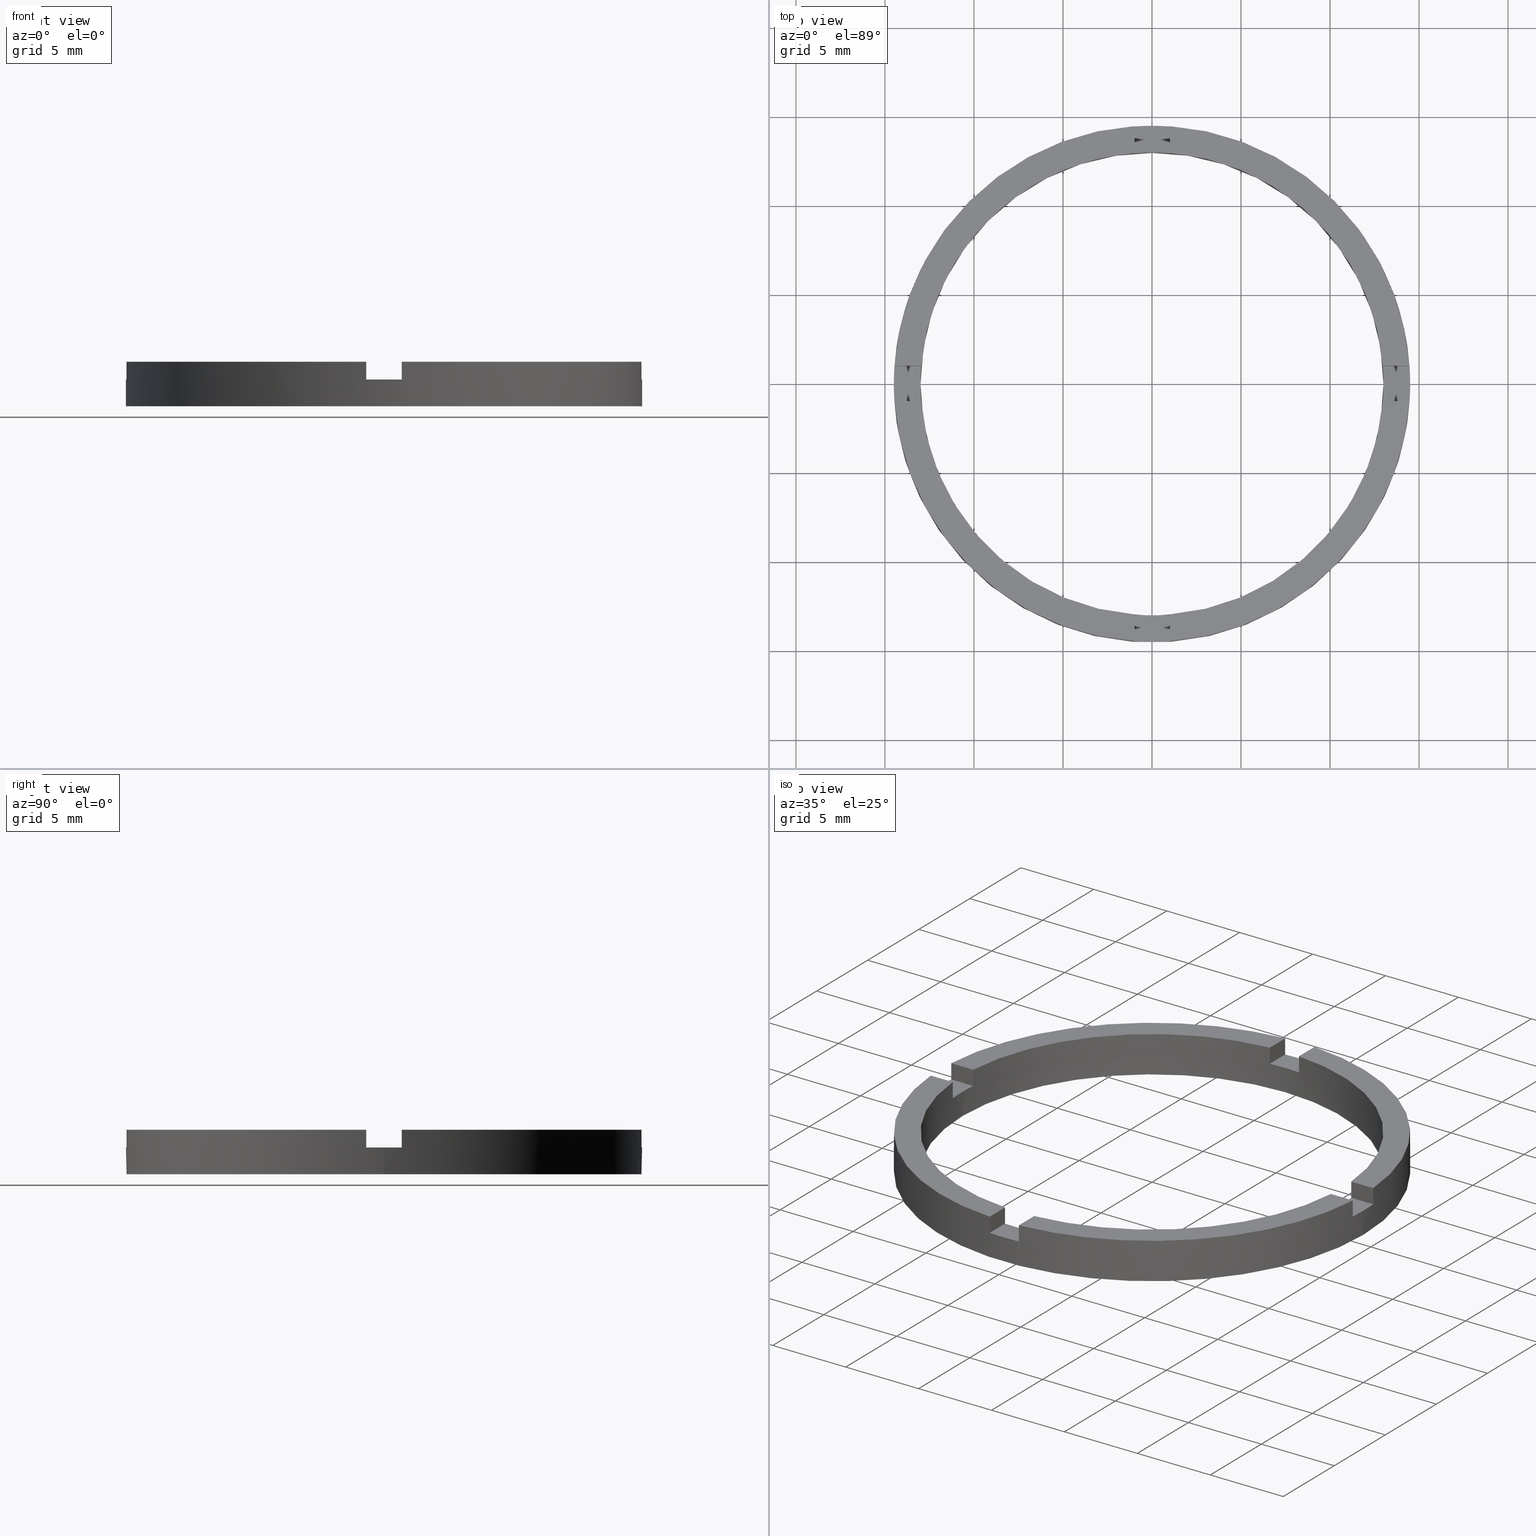
[diagram: canonical four-view strip — front | top / right | iso, engineering-drawing reading convention]
A machine part, canonical four-view strip (front | top / right | iso — engineering-drawing reading convention). The complete STEP part file that produces these views, byte-faithful:
ISO-10303-21;
HEADER;
FILE_DESCRIPTION (( 'STEP AP203' ),
    '1' );
FILE_NAME ('514064.step',
    '2024-12-26T02:34:07',
    ( 'MSI' ),
    ( '' ),
    'SwSTEP 2.0',
    'SolidWorks 2020',
    '' );
FILE_SCHEMA (( 'CONFIG_CONTROL_DESIGN' ));
ENDSEC;

DATA;
#1 = DIRECTION ( 'NONE',  ( 1.000000000000000000, 0.000000000000000000, 0.000000000000000000 ) ) ;
#2 = PERSON_AND_ORGANIZATION_ROLE ( 'creator' ) ;
#3 = DIRECTION ( 'NONE',  ( 1.000000000000000000, 0.000000000000000000, 0.000000000000000000 ) ) ;
#4 = EDGE_LOOP ( 'NONE', ( #522, #671, #521, #277, #666, #273, #653, #525, #433, #697, #689, #744 ) ) ;
#5 = DIRECTION ( 'NONE',  ( -0.000000000000000000, -0.000000000000000000, -1.000000000000000000 ) ) ;
#6 = ORIENTED_EDGE ( 'NONE', *, *, #186, .F. ) ;
#7 = DIRECTION ( 'NONE',  ( -0.000000000000000000, -1.000000000000000000, -0.000000000000000000 ) ) ;
#8 = ORIENTED_EDGE ( 'NONE', *, *, #707, .F. ) ;
#9 = PLANE ( 'NONE',  #580 ) ;
#10 = ORIENTED_EDGE ( 'NONE', *, *, #704, .T. ) ;
#11 = DIRECTION ( 'NONE',  ( 0.000000000000000000, 0.000000000000000000, 1.000000000000000000 ) ) ;
#12 = CC_DESIGN_APPROVAL ( #77, ( #757 ) ) ;
#13 = AXIS2_PLACEMENT_3D ( 'NONE', #326, #579, #141 ) ;
#14 = PLANE ( 'NONE',  #205 ) ;
#15 = DIRECTION ( 'NONE',  ( 0.000000000000000000, 0.000000000000000000, 1.000000000000000000 ) ) ;
#16 = LINE ( 'NONE', #338, #32 ) ;
#17 = DIRECTION ( 'NONE',  ( 1.734723475976807094E-16, -1.000000000000000000, 0.000000000000000000 ) ) ;
#18 = DIRECTION ( 'NONE',  ( -1.000000000000000000, -1.301042606982605321E-16, 0.000000000000000000 ) ) ;
#19 = CC_DESIGN_PERSON_AND_ORGANIZATION_ASSIGNMENT ( #616, #264, ( #330 ) ) ;
#20 = FACE_OUTER_BOUND ( 'NONE', #729, .T. ) ;
#21 = APPLICATION_PROTOCOL_DEFINITION ( 'international standard', 'config_control_design', 1994, #572 ) ;
#22 = CIRCLE ( 'NONE', #514, 13.00000000000000178 ) ;
#23 = CIRCLE ( 'NONE', #160, 14.50000000000000000 ) ;
#24 = DIRECTION ( 'NONE',  ( 1.000000000000000000, 4.336808689942017736E-17, 0.000000000000000000 ) ) ;
#25 = DIRECTION ( 'NONE',  ( 1.000000000000000000, 0.000000000000000000, 0.000000000000000000 ) ) ;
#26 = VECTOR ( 'NONE', #472, 1000.000000000000000 ) ;
#27 = CARTESIAN_POINT ( 'NONE',  ( 4.499999999999995559, 0.9999999999998402389, 1.500000000000000000 ) ) ;
#28 = AXIS2_PLACEMENT_3D ( 'NONE', #314, #750, #609 ) ;
#29 = VECTOR ( 'NONE', #90, 1000.000000000000000 ) ;
#30 = ADVANCED_FACE ( 'NONE', ( #406 ), #430, .T. ) ;
#31 = DIRECTION ( 'NONE',  ( 1.000000000000000000, 0.000000000000000000, -0.000000000000000000 ) ) ;
#32 = VECTOR ( 'NONE', #235, 1000.000000000000000 ) ;
#33 = CIRCLE ( 'NONE', #590, 14.50000000000000000 ) ;
#34 = CARTESIAN_POINT ( 'NONE',  ( -14.46547614148943062, -1.000000000000022871, 1.500000000000000000 ) ) ;
#35 = CIRCLE ( 'NONE', #783, 13.00000000000000178 ) ;
#36 = CARTESIAN_POINT ( 'NONE',  ( 0.9999999999998366862, -12.96148139681573497, 2.500000000000000000 ) ) ;
#37 = EDGE_CURVE ( 'NONE', #178, #442, #151, .T. ) ;
#38 = VECTOR ( 'NONE', #206, 1000.000000000000000 ) ;
#39 = DIRECTION ( 'NONE',  ( -1.000000000000000000, -1.734723475976807094E-16, 0.000000000000000000 ) ) ;
#40 = EDGE_CURVE ( 'NONE', #721, #256, #407, .T. ) ;
#41 = LINE ( 'NONE', #451, #299 ) ;
#42 = DIRECTION ( 'NONE',  ( 0.000000000000000000, 0.000000000000000000, 1.000000000000000000 ) ) ;
#43 = DIRECTION ( 'NONE',  ( -1.000000000000000000, 0.000000000000000000, 0.000000000000000000 ) ) ;
#44 = CIRCLE ( 'NONE', #365, 14.50000000000000000 ) ;
#45 = PLANE ( 'NONE',  #54 ) ;
#46 = LINE ( 'NONE', #574, #29 ) ;
#47 = CARTESIAN_POINT ( 'NONE',  ( -1.000000000000024869, 14.46547614148943062, 1.500000000000000000 ) ) ;
#48 = CARTESIAN_POINT ( 'NONE',  ( -1.000000000000024869, 14.46547614148943062, 2.500000000000000000 ) ) ;
#49 = PLANE ( 'NONE',  #229 ) ;
#50 = CIRCLE ( 'NONE', #184, 13.00000000000000178 ) ;
#51 = FACE_OUTER_BOUND ( 'NONE', #423, .T. ) ;
#52 = CC_DESIGN_SECURITY_CLASSIFICATION ( #330, ( #757 ) ) ;
#53 = DIRECTION ( 'NONE',  ( -0.000000000000000000, -0.000000000000000000, -1.000000000000000000 ) ) ;
#54 = AXIS2_PLACEMENT_3D ( 'NONE', #396, #448, #509 ) ;
#55 = FACE_OUTER_BOUND ( 'NONE', #157, .T. ) ;
#56 = EDGE_CURVE ( 'NONE', #755, #731, #385, .T. ) ;
#57 = LINE ( 'NONE', #225, #312 ) ;
#58 = DIRECTION ( 'NONE',  ( -0.000000000000000000, 0.000000000000000000, 1.000000000000000000 ) ) ;
#59 = PLANE ( 'NONE',  #175 ) ;
#60 = DIRECTION ( 'NONE',  ( 0.000000000000000000, 0.000000000000000000, 1.000000000000000000 ) ) ;
#61 = AXIS2_PLACEMENT_3D ( 'NONE', #763, #745, #86 ) ;
#62 = EDGE_CURVE ( 'NONE', #270, #230, #105, .T. ) ;
#63 = AXIS2_PLACEMENT_3D ( 'NONE', #584, #293, #703 ) ;
#64 = CARTESIAN_POINT ( 'NONE',  ( 0.9999999999998366862, -12.96148139681573497, 1.500000000000000000 ) ) ;
#65 = CARTESIAN_POINT ( 'NONE',  ( 0.000000000000000000, 0.000000000000000000, 2.500000000000000000 ) ) ;
#66 = CARTESIAN_POINT ( 'NONE',  ( 14.50000000000000000, 1.775737858763662015E-15, 0.000000000000000000 ) ) ;
#67 = DIRECTION ( 'NONE',  ( 1.000000000000000000, 0.000000000000000000, -0.000000000000000000 ) ) ;
#68 = CARTESIAN_POINT ( 'NONE',  ( 0.000000000000000000, 0.000000000000000000, 2.500000000000000000 ) ) ;
#69 = EDGE_CURVE ( 'NONE', #230, #523, #355, .T. ) ;
#70 = DIRECTION ( 'NONE',  ( 1.000000000000000000, 1.734723475976807094E-16, -0.000000000000000000 ) ) ;
#71 = CARTESIAN_POINT ( 'NONE',  ( 0.000000000000000000, 0.000000000000000000, 2.500000000000000000 ) ) ;
#72 = DIRECTION ( 'NONE',  ( -0.000000000000000000, -0.000000000000000000, -1.000000000000000000 ) ) ;
#73 = ADVANCED_FACE ( 'NONE', ( #649 ), #388, .F. ) ;
#74 = DIRECTION ( 'NONE',  ( 1.000000000000000000, 0.000000000000000000, 0.000000000000000000 ) ) ;
#75 = CARTESIAN_POINT ( 'NONE',  ( -1.000000000000024869, 14.46547614148943062, 2.500000000000000000 ) ) ;
#76 = CARTESIAN_POINT ( 'NONE',  ( 0.9999999999999751310, 14.46547614148943417, 2.500000000000000000 ) ) ;
#77 = APPROVAL ( #679, 'δָ��' ) ;
#78 = AXIS2_PLACEMENT_3D ( 'NONE', #208, #577, #760 ) ;
#79 = EDGE_CURVE ( 'NONE', #777, #752, #134, .T. ) ;
#80 = DIRECTION ( 'NONE',  ( -1.301042606982605321E-16, 1.000000000000000000, -0.000000000000000000 ) ) ;
#81 = CARTESIAN_POINT ( 'NONE',  ( -12.96148139681572253, 0.9999999999999776845, 1.500000000000000000 ) ) ;
#82 = CARTESIAN_POINT ( 'NONE',  ( 4.499999999999995559, 0.9999999999998402389, 1.500000000000000000 ) ) ;
#83 = PRODUCT_DEFINITION_SHAPE ( 'NONE', 'NONE',  #578 ) ;
#84 = CARTESIAN_POINT ( 'NONE',  ( -1.000000000000024869, 12.96148139681571898, 1.500000000000000000 ) ) ;
#85 = CARTESIAN_POINT ( 'NONE',  ( 0.000000000000000000, 0.000000000000000000, 1.500000000000000000 ) ) ;
#86 = DIRECTION ( 'NONE',  ( 1.000000000000000000, 0.000000000000000000, 0.000000000000000000 ) ) ;
#87 = PLANE ( 'NONE',  #603 ) ;
#88 = CALENDAR_DATE ( 2024, 26, 12 ) ;
#89 = EDGE_CURVE ( 'NONE', #209, #755, #145, .T. ) ;
#90 = DIRECTION ( 'NONE',  ( 0.000000000000000000, 0.000000000000000000, 1.000000000000000000 ) ) ;
#91 = EDGE_CURVE ( 'NONE', #223, #465, #395, .T. ) ;
#92 = CARTESIAN_POINT ( 'NONE',  ( 0.000000000000000000, 0.000000000000000000, 2.500000000000000000 ) ) ;
#93 = AXIS2_PLACEMENT_3D ( 'NONE', #237, #301, #639 ) ;
#94 = COORDINATED_UNIVERSAL_TIME_OFFSET ( 8, 0, .AHEAD. ) ;
#95 = DIRECTION ( 'NONE',  ( -4.336808689942017736E-17, 1.000000000000000000, 0.000000000000000000 ) ) ;
#96 = CARTESIAN_POINT ( 'NONE',  ( 0.9999999999999751310, 12.96148139681572431, 2.500000000000000000 ) ) ;
#97 = DIRECTION ( 'NONE',  ( 0.000000000000000000, 0.000000000000000000, 1.000000000000000000 ) ) ;
#98 = CALENDAR_DATE ( 2024, 26, 12 ) ;
#99 = CARTESIAN_POINT ( 'NONE',  ( 0.9999999999998366862, -12.96148139681573497, 2.500000000000000000 ) ) ;
#100 = APPROVAL_PERSON_ORGANIZATION ( #368, #77, #761 ) ;
#101 = EDGE_CURVE ( 'NONE', #487, #523, #383, .T. ) ;
#102 = DIRECTION ( 'NONE',  ( -1.734723475976807094E-16, 1.000000000000000000, 0.000000000000000000 ) ) ;
#103 = DATE_AND_TIME ( #98, #113 ) ;
#104 = CARTESIAN_POINT ( 'NONE',  ( 14.50000000000000000, 1.775737858763662015E-15, 2.500000000000000000 ) ) ;
#105 = CIRCLE ( 'NONE', #169, 13.00000000000000178 ) ;
#106 = EDGE_CURVE ( 'NONE', #752, #429, #153, .T. ) ;
#107 = LINE ( 'NONE', #591, #631 ) ;
#108 = DATE_AND_TIME ( #619, #358 ) ;
#109 = COORDINATED_UNIVERSAL_TIME_OFFSET ( 8, 0, .AHEAD. ) ;
#110 = PERSON_AND_ORGANIZATION ( #212, #116 ) ;
#111 = CC_DESIGN_PERSON_AND_ORGANIZATION_ASSIGNMENT ( #622, #319, ( #578 ) ) ;
#112 = CARTESIAN_POINT ( 'NONE',  ( 0.9999999999999751310, 12.96148139681572431, 1.500000000000000000 ) ) ;
#113 = LOCAL_TIME ( 10, 34, 7.000000000000000000, #94 ) ;
#114 = APPROVAL_PERSON_ORGANIZATION ( #623, #154, #268 ) ;
#115 = LOCAL_TIME ( 10, 34, 7.000000000000000000, #627 ) ;
#116 = ORGANIZATION ( 'δָ��', 'δָ��', '' ) ;
#117 = CIRCLE ( 'NONE', #351, 14.50000000000000000 ) ;
#118 = FACE_OUTER_BOUND ( 'NONE', #411, .T. ) ;
#119 = DIRECTION ( 'NONE',  ( 0.000000000000000000, 0.000000000000000000, 1.000000000000000000 ) ) ;
#120 = FACE_OUTER_BOUND ( 'NONE', #213, .T. ) ;
#121 = ADVANCED_BREP_SHAPE_REPRESENTATION ( '514064', ( #399, #437 ), #539 ) ;
#122 = LINE ( 'NONE', #780, #386 ) ;
#123 = AXIS2_PLACEMENT_3D ( 'NONE', #332, #691, #766 ) ;
#124 = VECTOR ( 'NONE', #661, 1000.000000000000000 ) ;
#125 = CARTESIAN_POINT ( 'NONE',  ( -4.500000000000186517, -1.000000000000021094, 1.500000000000000000 ) ) ;
#126 = VECTOR ( 'NONE', #476, 1000.000000000000000 ) ;
#127 = CIRCLE ( 'NONE', #93, 14.50000000000000000 ) ;
#128 = ADVANCED_FACE ( 'NONE', ( #120 ), #14, .F. ) ;
#129 = VECTOR ( 'NONE', #554, 1000.000000000000000 ) ;
#130 = EDGE_CURVE ( 'NONE', #721, #731, #654, .T. ) ;
#131 = AXIS2_PLACEMENT_3D ( 'NONE', #92, #685, #458 ) ;
#132 = FACE_OUTER_BOUND ( 'NONE', #701, .T. ) ;
#133 = DIRECTION ( 'NONE',  ( 0.000000000000000000, 0.000000000000000000, 1.000000000000000000 ) ) ;
#134 = LINE ( 'NONE', #496, #129 ) ;
#135 = LINE ( 'NONE', #294, #126 ) ;
#136 = ADVANCED_FACE ( 'NONE', ( #132 ), #259, .T. ) ;
#137 = VECTOR ( 'NONE', #367, 1000.000000000000000 ) ;
#138 = DIRECTION ( 'NONE',  ( 0.000000000000000000, 0.000000000000000000, 1.000000000000000000 ) ) ;
#139 = CARTESIAN_POINT ( 'NONE',  ( 12.96148139681573497, 0.9999999999998406830, 2.500000000000000000 ) ) ;
#140 = VECTOR ( 'NONE', #573, 1000.000000000000000 ) ;
#141 = DIRECTION ( 'NONE',  ( 1.000000000000000000, 0.000000000000000000, 0.000000000000000000 ) ) ;
#142 = VECTOR ( 'NONE', #150, 1000.000000000000000 ) ;
#143 = ORIENTED_EDGE ( 'NONE', *, *, #286, .T. ) ;
#144 = EDGE_CURVE ( 'NONE', #447, #484, #640, .T. ) ;
#145 = LINE ( 'NONE', #75, #140 ) ;
#146 = ORIENTED_EDGE ( 'NONE', *, *, #424, .F. ) ;
#147 = VECTOR ( 'NONE', #345, 1000.000000000000000 ) ;
#148 = DIRECTION ( 'NONE',  ( 0.000000000000000000, 0.000000000000000000, 1.000000000000000000 ) ) ;
#149 = UNCERTAINTY_MEASURE_WITH_UNIT (LENGTH_MEASURE( 1.000000000000000082E-05 ), #756, 'distance_accuracy_value', 'NONE');
#150 = DIRECTION ( 'NONE',  ( -1.000000000000000000, -4.336808689942017736E-17, -0.000000000000000000 ) ) ;
#151 = LINE ( 'NONE', #195, #124 ) ;
#152 = ORIENTED_EDGE ( 'NONE', *, *, #281, .T. ) ;
#153 = CIRCLE ( 'NONE', #247, 13.00000000000000178 ) ;
#154 = APPROVAL ( #199, 'δָ��' ) ;
#155 = CARTESIAN_POINT ( 'NONE',  ( 0.000000000000000000, 0.000000000000000000, 2.500000000000000000 ) ) ;
#156 = CARTESIAN_POINT ( 'NONE',  ( 0.9999999999998369082, -14.46547614148944483, 1.500000000000000000 ) ) ;
#157 = EDGE_LOOP ( 'NONE', ( #453, #250, #508, #192 ) ) ;
#158 = ORIENTED_EDGE ( 'NONE', *, *, #144, .T. ) ;
#159 = CARTESIAN_POINT ( 'NONE',  ( 14.50000000000000000, 1.775737858763662015E-15, 1.500000000000000000 ) ) ;
#160 = AXIS2_PLACEMENT_3D ( 'NONE', #576, #517, #74 ) ;
#161 = CARTESIAN_POINT ( 'NONE',  ( 0.9999999999999751310, 14.46547614148943417, 1.500000000000000000 ) ) ;
#162 = ORIENTED_EDGE ( 'NONE', *, *, #648, .F. ) ;
#163 = VERTEX_POINT ( 'NONE', #670 ) ;
#164 = DIRECTION ( 'NONE',  ( 0.000000000000000000, 0.000000000000000000, 1.000000000000000000 ) ) ;
#165 = CARTESIAN_POINT ( 'NONE',  ( -14.46547614148943417, 0.9999999999999772404, 2.500000000000000000 ) ) ;
#166 = ORIENTED_EDGE ( 'NONE', *, *, #586, .T. ) ;
#167 = ORIENTED_EDGE ( 'NONE', *, *, #341, .F. ) ;
#168 = PLANE ( 'NONE',  #63 ) ;
#169 = AXIS2_PLACEMENT_3D ( 'NONE', #71, #11, #322 ) ;
#170 = DIRECTION ( 'NONE',  ( 1.000000000000000000, 0.000000000000000000, 0.000000000000000000 ) ) ;
#171 = VERTEX_POINT ( 'NONE', #81 ) ;
#172 = ORIENTED_EDGE ( 'NONE', *, *, #364, .F. ) ;
#173 = DIRECTION ( 'NONE',  ( -1.000000000000000000, -1.734723475976807094E-16, 0.000000000000000000 ) ) ;
#174 = DIRECTION ( 'NONE',  ( -0.000000000000000000, -0.000000000000000000, -1.000000000000000000 ) ) ;
#175 = AXIS2_PLACEMENT_3D ( 'NONE', #624, #773, #439 ) ;
#176 = VERTEX_POINT ( 'NONE', #36 ) ;
#177 = PLANE ( 'NONE',  #562 ) ;
#178 = VERTEX_POINT ( 'NONE', #363 ) ;
#179 = CIRCLE ( 'NONE', #722, 14.50000000000000000 ) ;
#180 = CARTESIAN_POINT ( 'NONE',  ( 0.000000000000000000, 0.000000000000000000, 2.500000000000000000 ) ) ;
#181 = FACE_OUTER_BOUND ( 'NONE', #4, .T. ) ;
#182 = DIRECTION ( 'NONE',  ( -1.000000000000000000, 0.000000000000000000, 0.000000000000000000 ) ) ;
#183 = ORIENTED_EDGE ( 'NONE', *, *, #144, .F. ) ;
#184 = AXIS2_PLACEMENT_3D ( 'NONE', #503, #455, #278 ) ;
#185 = FACE_OUTER_BOUND ( 'NONE', #519, .T. ) ;
#186 = EDGE_CURVE ( 'NONE', #736, #261, #651, .T. ) ;
#187 = SECURITY_CLASSIFICATION_LEVEL ( 'unclassified' ) ;
#188 = ORIENTED_EDGE ( 'NONE', *, *, #130, .F. ) ;
#189 = DIRECTION ( 'NONE',  ( -1.000000000000000000, 0.000000000000000000, 0.000000000000000000 ) ) ;
#190 = ORIENTED_EDGE ( 'NONE', *, *, #56, .F. ) ;
#191 = AXIS2_PLACEMENT_3D ( 'NONE', #507, #133, #381 ) ;
#192 = ORIENTED_EDGE ( 'NONE', *, *, #352, .T. ) ;
#193 = ORIENTED_EDGE ( 'NONE', *, *, #597, .T. ) ;
#194 = ADVANCED_FACE ( 'NONE', ( #403 ), #87, .T. ) ;
#195 = CARTESIAN_POINT ( 'NONE',  ( -14.46547614148943417, 0.9999999999999772404, 2.500000000000000000 ) ) ;
#196 = ORIENTED_EDGE ( 'NONE', *, *, #704, .F. ) ;
#197 = ORIENTED_EDGE ( 'NONE', *, *, #211, .F. ) ;
#198 = ORIENTED_EDGE ( 'NONE', *, *, #258, .T. ) ;
#199 = APPROVAL_STATUS ( 'not_yet_approved' ) ;
#200 = ORIENTED_EDGE ( 'NONE', *, *, #106, .F. ) ;
#201 = ORIENTED_EDGE ( 'NONE', *, *, #211, .T. ) ;
#202 = ORIENTED_EDGE ( 'NONE', *, *, #300, .F. ) ;
#203 = ADVANCED_FACE ( 'NONE', ( #379 ), #394, .F. ) ;
#204 = ORIENTED_EDGE ( 'NONE', *, *, #559, .T. ) ;
#205 = AXIS2_PLACEMENT_3D ( 'NONE', #320, #17, #605 ) ;
#206 = DIRECTION ( 'NONE',  ( -0.000000000000000000, -0.000000000000000000, -1.000000000000000000 ) ) ;
#207 = EDGE_LOOP ( 'NONE', ( #778, #220, #6, #409 ) ) ;
#208 = CARTESIAN_POINT ( 'NONE',  ( 0.9999999999998356870, -4.500000000000181188, 1.500000000000000000 ) ) ;
#209 = VERTEX_POINT ( 'NONE', #48 ) ;
#210 = APPLICATION_CONTEXT ( 'configuration controlled 3d designs of mechanical parts and assemblies' ) ;
#211 = EDGE_CURVE ( 'NONE', #516, #176, #354, .T. ) ;
#212 = PERSON ( 'δָ��', 'δָ��', 'δָ��', ('δָ��'), ('δָ��'), ('δָ��') ) ;
#213 = EDGE_LOOP ( 'NONE', ( #725, #418, #713, #715 ) ) ;
#214 = DIRECTION ( 'NONE',  ( -0.000000000000000000, -0.000000000000000000, -1.000000000000000000 ) ) ;
#215 = ORIENTED_EDGE ( 'NONE', *, *, #40, .F. ) ;
#216 = VERTEX_POINT ( 'NONE', #64 ) ;
#217 = ORIENTED_EDGE ( 'NONE', *, *, #295, .F. ) ;
#218 = CARTESIAN_POINT ( 'NONE',  ( 14.46547614148944483, 0.9999999999998406830, 1.500000000000000000 ) ) ;
#219 = VERTEX_POINT ( 'NONE', #422 ) ;
#220 = ORIENTED_EDGE ( 'NONE', *, *, #271, .T. ) ;
#221 = DIRECTION ( 'NONE',  ( -0.000000000000000000, -0.000000000000000000, -1.000000000000000000 ) ) ;
#222 = VERTEX_POINT ( 'NONE', #357 ) ;
#223 = VERTEX_POINT ( 'NONE', #633 ) ;
#224 = DIRECTION ( 'NONE',  ( -0.000000000000000000, -0.000000000000000000, -1.000000000000000000 ) ) ;
#225 = CARTESIAN_POINT ( 'NONE',  ( 0.9999999999999751310, 4.500000000000000888, 1.500000000000000000 ) ) ;
#226 = EDGE_LOOP ( 'NONE', ( #470, #692, #217, #215 ) ) ;
#227 = CC_DESIGN_PERSON_AND_ORGANIZATION_ASSIGNMENT ( #110, #2, ( #757 ) ) ;
#228 = CARTESIAN_POINT ( 'NONE',  ( 0.000000000000000000, 0.000000000000000000, 1.500000000000000000 ) ) ;
#229 = AXIS2_PLACEMENT_3D ( 'NONE', #82, #95, #520 ) ;
#230 = VERTEX_POINT ( 'NONE', #485 ) ;
#231 = ORIENTED_EDGE ( 'NONE', *, *, #300, .T. ) ;
#232 = DIRECTION ( 'NONE',  ( 0.000000000000000000, 0.000000000000000000, 1.000000000000000000 ) ) ;
#233 = EDGE_LOOP ( 'NONE', ( #236, #152, #450, #238, #655, #413 ) ) ;
#234 = EDGE_LOOP ( 'NONE', ( #471, #172, #204, #678, #726, #747, #231, #480, #464, #732, #735, #456 ) ) ;
#235 = DIRECTION ( 'NONE',  ( -1.000000000000000000, -4.336808689942017736E-17, -0.000000000000000000 ) ) ;
#236 = ORIENTED_EDGE ( 'NONE', *, *, #614, .T. ) ;
#237 = CARTESIAN_POINT ( 'NONE',  ( 0.000000000000000000, 0.000000000000000000, 2.500000000000000000 ) ) ;
#238 = ORIENTED_EDGE ( 'NONE', *, *, #782, .F. ) ;
#239 = EDGE_CURVE ( 'NONE', #209, #721, #107, .T. ) ;
#240 = ORIENTED_EDGE ( 'NONE', *, *, #295, .T. ) ;
#241 = CC_DESIGN_PERSON_AND_ORGANIZATION_ASSIGNMENT ( #343, #730, ( #757 ) ) ;
#242 = CARTESIAN_POINT ( 'NONE',  ( -1.000000000000164313, -4.500000000000181188, 1.500000000000000000 ) ) ;
#243 = EDGE_CURVE ( 'NONE', #516, #484, #636, .T. ) ;
#244 = VERTEX_POINT ( 'NONE', #428 ) ;
#245 = EDGE_CURVE ( 'NONE', #723, #163, #632, .T. ) ;
#246 = CARTESIAN_POINT ( 'NONE',  ( -12.96148139681572253, 0.9999999999999776845, 2.500000000000000000 ) ) ;
#247 = AXIS2_PLACEMENT_3D ( 'NONE', #746, #328, #372 ) ;
#248 = ORIENTED_EDGE ( 'NONE', *, *, #738, .T. ) ;
#249 = CARTESIAN_POINT ( 'NONE',  ( 0.000000000000000000, 0.000000000000000000, 1.500000000000000000 ) ) ;
#250 = ORIENTED_EDGE ( 'NONE', *, *, #56, .T. ) ;
#251 = EDGE_LOOP ( 'NONE', ( #146, #646, #158, #500 ) ) ;
#252 = VERTEX_POINT ( 'NONE', #112 ) ;
#253 = EDGE_CURVE ( 'NONE', #429, #222, #390, .T. ) ;
#254 = ORIENTED_EDGE ( 'NONE', *, *, #776, .F. ) ;
#255 = APPROVAL_STATUS ( 'not_yet_approved' ) ;
#256 = VERTEX_POINT ( 'NONE', #246 ) ;
#257 = VERTEX_POINT ( 'NONE', #66 ) ;
#258 = EDGE_CURVE ( 'NONE', #171, #256, #610, .T. ) ;
#259 = PLANE ( 'NONE',  #490 ) ;
#260 = EDGE_LOOP ( 'NONE', ( #183, #466, #197, #699 ) ) ;
#261 = VERTEX_POINT ( 'NONE', #540 ) ;
#262 = ADVANCED_FACE ( 'NONE', ( #374 ), #308, .F. ) ;
#263 = EDGE_CURVE ( 'NONE', #777, #222, #127, .T. ) ;
#264 = PERSON_AND_ORGANIZATION_ROLE ( 'classification_officer' ) ;
#265 = EDGE_LOOP ( 'NONE', ( #392, #708, #711, #202 ) ) ;
#266 = ADVANCED_FACE ( 'NONE', ( #387 ), #177, .F. ) ;
#267 = ORIENTED_EDGE ( 'NONE', *, *, #753, .T. ) ;
#268 = APPROVAL_ROLE ( '' ) ;
#269 = AXIS2_PLACEMENT_3D ( 'NONE', #249, #310, #349 ) ;
#270 = VERTEX_POINT ( 'NONE', #139 ) ;
#271 = EDGE_CURVE ( 'NONE', #270, #261, #642, .T. ) ;
#272 = EDGE_LOOP ( 'NONE', ( #765, #762, #190, #660 ) ) ;
#273 = ORIENTED_EDGE ( 'NONE', *, *, #37, .T. ) ;
#274 = ADVANCED_FACE ( 'NONE', ( #118 ), #645, .F. ) ;
#275 = DIRECTION ( 'NONE',  ( 1.000000000000000000, 0.000000000000000000, 0.000000000000000000 ) ) ;
#276 = DIRECTION ( 'NONE',  ( -0.000000000000000000, -0.000000000000000000, -1.000000000000000000 ) ) ;
#277 = ORIENTED_EDGE ( 'NONE', *, *, #626, .F. ) ;
#278 = DIRECTION ( 'NONE',  ( 1.000000000000000000, 0.000000000000000000, 0.000000000000000000 ) ) ;
#279 = DIRECTION ( 'NONE',  ( 1.000000000000000000, 0.000000000000000000, 0.000000000000000000 ) ) ;
#280 = DIRECTION ( 'NONE',  ( 0.000000000000000000, -0.000000000000000000, 1.000000000000000000 ) ) ;
#281 = EDGE_CURVE ( 'NONE', #781, #723, #625, .T. ) ;
#282 = FACE_OUTER_BOUND ( 'NONE', #226, .T. ) ;
#283 = CARTESIAN_POINT ( 'NONE',  ( 0.000000000000000000, 0.000000000000000000, 2.500000000000000000 ) ) ;
#284 = DIRECTION ( 'NONE',  ( 0.000000000000000000, 0.000000000000000000, 1.000000000000000000 ) ) ;
#285 = LINE ( 'NONE', #528, #548 ) ;
#286 = EDGE_CURVE ( 'NONE', #734, #736, #117, .T. ) ;
#287 = CIRCLE ( 'NONE', #131, 14.50000000000000000 ) ;
#288 = CARTESIAN_POINT ( 'NONE',  ( 0.000000000000000000, 0.000000000000000000, 2.500000000000000000 ) ) ;
#289 = CIRCLE ( 'NONE', #13, 13.00000000000000178 ) ;
#290 = EDGE_CURVE ( 'NONE', #219, #447, #135, .T. ) ;
#291 = CIRCLE ( 'NONE', #452, 14.50000000000000000 ) ;
#292 = FACE_OUTER_BOUND ( 'NONE', #234, .T. ) ;
#293 = DIRECTION ( 'NONE',  ( -1.000000000000000000, 0.000000000000000000, 0.000000000000000000 ) ) ;
#294 = CARTESIAN_POINT ( 'NONE',  ( 12.96148139681570832, -1.000000000000159428, 2.500000000000000000 ) ) ;
#295 = EDGE_CURVE ( 'NONE', #256, #442, #376, .T. ) ;
#296 = LINE ( 'NONE', #779, #545 ) ;
#297 = CC_DESIGN_APPROVAL ( #154, ( #578 ) ) ;
#298 = CARTESIAN_POINT ( 'NONE',  ( 0.000000000000000000, 0.000000000000000000, 1.500000000000000000 ) ) ;
#299 = VECTOR ( 'NONE', #511, 1000.000000000000000 ) ;
#300 = EDGE_CURVE ( 'NONE', #426, #222, #122, .T. ) ;
#301 = DIRECTION ( 'NONE',  ( 0.000000000000000000, 0.000000000000000000, 1.000000000000000000 ) ) ;
#302 = CIRCLE ( 'NONE', #473, 13.00000000000000178 ) ;
#303 = LINE ( 'NONE', #96, #558 ) ;
#304 = LINE ( 'NONE', #775, #552 ) ;
#305 = LINE ( 'NONE', #506, #307 ) ;
#306 = EDGE_CURVE ( 'NONE', #734, #257, #638, .T. ) ;
#307 = VECTOR ( 'NONE', #80, 1000.000000000000000 ) ;
#308 = PLANE ( 'NONE',  #742 ) ;
#309 = VECTOR ( 'NONE', #39, 1000.000000000000000 ) ;
#310 = DIRECTION ( 'NONE',  ( 0.000000000000000000, 0.000000000000000000, 1.000000000000000000 ) ) ;
#311 = LINE ( 'NONE', #695, #313 ) ;
#312 = VECTOR ( 'NONE', #335, 1000.000000000000000 ) ;
#313 = VECTOR ( 'NONE', #24, 1000.000000000000000 ) ;
#314 = CARTESIAN_POINT ( 'NONE',  ( 0.000000000000000000, 0.000000000000000000, 2.500000000000000000 ) ) ;
#315 = DESIGN_CONTEXT ( 'detailed design', #572, 'design' ) ;
#316 = EDGE_CURVE ( 'NONE', #426, #425, #179, .T. ) ;
#317 = ADVANCED_FACE ( 'NONE', ( #185, #432 ), #542, .F. ) ;
#318 = DIRECTION ( 'NONE',  ( 1.000000000000000000, 4.336808689942017736E-17, 0.000000000000000000 ) ) ;
#319 = PERSON_AND_ORGANIZATION_ROLE ( 'creator' ) ;
#320 = CARTESIAN_POINT ( 'NONE',  ( -4.500000000000186517, -1.000000000000021094, 1.500000000000000000 ) ) ;
#321 = ADVANCED_FACE ( 'NONE', ( #688 ), #9, .T. ) ;
#322 = DIRECTION ( 'NONE',  ( 1.000000000000000000, 0.000000000000000000, 0.000000000000000000 ) ) ;
#323 = CARTESIAN_POINT ( 'NONE',  ( -14.50000000000000000, 0.000000000000000000, 1.500000000000000000 ) ) ;
#324 = AXIS2_PLACEMENT_3D ( 'NONE', #288, #410, #340 ) ;
#325 = ADVANCED_FACE ( 'NONE', ( #181 ), #694, .T. ) ;
#326 = CARTESIAN_POINT ( 'NONE',  ( 0.000000000000000000, 0.000000000000000000, 0.000000000000000000 ) ) ;
#327 = CARTESIAN_POINT ( 'NONE',  ( 0.000000000000000000, 0.000000000000000000, 1.500000000000000000 ) ) ;
#328 = DIRECTION ( 'NONE',  ( 0.000000000000000000, 0.000000000000000000, 1.000000000000000000 ) ) ;
#329 = DIRECTION ( 'NONE',  ( 1.000000000000000000, 0.000000000000000000, 0.000000000000000000 ) ) ;
#330 = SECURITY_CLASSIFICATION ( '', '', #187 ) ;
#331 = DIRECTION ( 'NONE',  ( 1.000000000000000000, 0.000000000000000000, 0.000000000000000000 ) ) ;
#332 = CARTESIAN_POINT ( 'NONE',  ( 4.499999999999995559, -1.000000000000159872, 1.500000000000000000 ) ) ;
#333 = EDGE_CURVE ( 'NONE', #665, #261, #443, .T. ) ;
#334 = CARTESIAN_POINT ( 'NONE',  ( -4.500000000000186517, 0.9999999999999790168, 1.500000000000000000 ) ) ;
#335 = DIRECTION ( 'NONE',  ( 0.000000000000000000, 1.000000000000000000, 0.000000000000000000 ) ) ;
#336 = CARTESIAN_POINT ( 'NONE',  ( -1.000000000000163203, -12.96148139681570832, 2.500000000000000000 ) ) ;
#337 = CARTESIAN_POINT ( 'NONE',  ( 0.000000000000000000, 0.000000000000000000, 2.500000000000000000 ) ) ;
#338 = CARTESIAN_POINT ( 'NONE',  ( 4.499999999999995559, 0.9999999999998402389, 2.500000000000000000 ) ) ;
#339 = AXIS2_PLACEMENT_3D ( 'NONE', #676, #594, #510 ) ;
#340 = DIRECTION ( 'NONE',  ( -1.000000000000000000, 0.000000000000000000, 0.000000000000000000 ) ) ;
#341 = EDGE_CURVE ( 'NONE', #416, #465, #435, .T. ) ;
#342 = SHAPE_DEFINITION_REPRESENTATION ( #83, #121 ) ;
#343 = PERSON_AND_ORGANIZATION ( #212, #116 ) ;
#344 = APPROVAL_DATE_TIME ( #606, #77 ) ;
#345 = DIRECTION ( 'NONE',  ( 0.000000000000000000, 0.000000000000000000, 1.000000000000000000 ) ) ;
#346 = LOCAL_TIME ( 10, 34, 7.000000000000000000, #611 ) ;
#347 = CARTESIAN_POINT ( 'NONE',  ( -12.96148139681572253, 0.9999999999999776845, 2.500000000000000000 ) ) ;
#348 = LOCAL_TIME ( 10, 34, 7.000000000000000000, #375 ) ;
#349 = DIRECTION ( 'NONE',  ( 1.000000000000000000, 0.000000000000000000, 0.000000000000000000 ) ) ;
#350 = APPROVAL ( #255, 'δָ��' ) ;
#351 = AXIS2_PLACEMENT_3D ( 'NONE', #469, #97, #393 ) ;
#352 = EDGE_CURVE ( 'NONE', #252, #487, #57, .T. ) ;
#353 = CARTESIAN_POINT ( 'NONE',  ( 0.9999999999998356870, -4.500000000000181188, 2.500000000000000000 ) ) ;
#354 = LINE ( 'NONE', #353, #607 ) ;
#355 = LINE ( 'NONE', #359, #137 ) ;
#356 = CARTESIAN_POINT ( 'NONE',  ( 0.000000000000000000, 0.000000000000000000, 1.500000000000000000 ) ) ;
#357 = CARTESIAN_POINT ( 'NONE',  ( -1.000000000000162981, -14.46547614148942174, 2.500000000000000000 ) ) ;
#358 = LOCAL_TIME ( 10, 34, 7.000000000000000000, #109 ) ;
#359 = CARTESIAN_POINT ( 'NONE',  ( 0.9999999999999751310, 4.500000000000000888, 2.500000000000000000 ) ) ;
#360 = AXIS2_PLACEMENT_3D ( 'NONE', #155, #501, #564 ) ;
#361 = APPROVAL_PERSON_ORGANIZATION ( #369, #350, #530 ) ;
#362 = APPROVAL_DATE_TIME ( #103, #350 ) ;
#363 = CARTESIAN_POINT ( 'NONE',  ( -14.46547614148943417, 0.9999999999999772404, 1.500000000000000000 ) ) ;
#364 = EDGE_CURVE ( 'NONE', #491, #734, #565, .T. ) ;
#365 = AXIS2_PLACEMENT_3D ( 'NONE', #298, #524, #583 ) ;
#366 = DIRECTION ( 'NONE',  ( 0.000000000000000000, 0.000000000000000000, 1.000000000000000000 ) ) ;
#367 = DIRECTION ( 'NONE',  ( 0.000000000000000000, 1.000000000000000000, 0.000000000000000000 ) ) ;
#368 = PERSON_AND_ORGANIZATION ( #212, #116 ) ;
#369 = PERSON_AND_ORGANIZATION ( #212, #116 ) ;
#370 = CARTESIAN_POINT ( 'NONE',  ( -1.000000000000024869, 12.96148139681571898, 2.500000000000000000 ) ) ;
#371 = DATE_AND_TIME ( #378, #115 ) ;
#372 = DIRECTION ( 'NONE',  ( 1.000000000000000000, 0.000000000000000000, 0.000000000000000000 ) ) ;
#373 = AXIS2_PLACEMENT_3D ( 'NONE', #613, #641, #686 ) ;
#374 = FACE_OUTER_BOUND ( 'NONE', #774, .T. ) ;
#375 = COORDINATED_UNIVERSAL_TIME_OFFSET ( 8, 0, .AHEAD. ) ;
#376 = LINE ( 'NONE', #527, #382 ) ;
#377 = ADVANCED_FACE ( 'NONE', ( #51 ), #389, .F. ) ;
#378 = CALENDAR_DATE ( 2024, 26, 12 ) ;
#379 = FACE_OUTER_BOUND ( 'NONE', #251, .T. ) ;
#380 = CARTESIAN_POINT ( 'NONE',  ( -12.96148139681571898, -1.000000000000022427, 2.500000000000000000 ) ) ;
#381 = DIRECTION ( 'NONE',  ( 1.000000000000000000, 0.000000000000000000, 0.000000000000000000 ) ) ;
#382 = VECTOR ( 'NONE', #635, 1000.000000000000000 ) ;
#383 = LINE ( 'NONE', #758, #404 ) ;
#384 = DIRECTION ( 'NONE',  ( 1.000000000000000000, 0.000000000000000000, -0.000000000000000000 ) ) ;
#385 = LINE ( 'NONE', #549, #647 ) ;
#386 = VECTOR ( 'NONE', #60, 1000.000000000000000 ) ;
#387 = FACE_OUTER_BOUND ( 'NONE', #265, .T. ) ;
#388 = CYLINDRICAL_SURFACE ( 'NONE', #683, 13.00000000000000178 ) ;
#389 = PLANE ( 'NONE',  #78 ) ;
#390 = LINE ( 'NONE', #493, #391 ) ;
#391 = VECTOR ( 'NONE', #702, 1000.000000000000000 ) ;
#392 = ORIENTED_EDGE ( 'NONE', *, *, #673, .F. ) ;
#393 = DIRECTION ( 'NONE',  ( 1.000000000000000000, 0.000000000000000000, 0.000000000000000000 ) ) ;
#394 = PLANE ( 'NONE',  #123 ) ;
#395 = CIRCLE ( 'NONE', #191, 13.00000000000000178 ) ;
#396 = CARTESIAN_POINT ( 'NONE',  ( 0.9999999999999751310, 4.500000000000000888, 1.500000000000000000 ) ) ;
#397 = VECTOR ( 'NONE', #276, 1000.000000000000000 ) ;
#398 = ORIENTED_EDGE ( 'NONE', *, *, #581, .T. ) ;
#399 = MANIFOLD_SOLID_BREP ( '�г�-����1', #462 ) ;
#400 = CC_DESIGN_DATE_AND_TIME_ASSIGNMENT ( #108, #719, ( #330 ) ) ;
#401 = CARTESIAN_POINT ( 'NONE',  ( 0.000000000000000000, 0.000000000000000000, 0.000000000000000000 ) ) ;
#402 = AXIS2_PLACEMENT_3D ( 'NONE', #749, #620, #329 ) ;
#403 = FACE_OUTER_BOUND ( 'NONE', #233, .T. ) ;
#404 = VECTOR ( 'NONE', #546, 1000.000000000000000 ) ;
#405 = CARTESIAN_POINT ( 'NONE',  ( 0.000000000000000000, 0.000000000000000000, 0.000000000000000000 ) ) ;
#406 = FACE_OUTER_BOUND ( 'NONE', #674, .T. ) ;
#407 = CIRCLE ( 'NONE', #28, 13.00000000000000178 ) ;
#408 = VECTOR ( 'NONE', #318, 1000.000000000000000 ) ;
#409 = ORIENTED_EDGE ( 'NONE', *, *, #569, .F. ) ;
#410 = DIRECTION ( 'NONE',  ( -0.000000000000000000, -0.000000000000000000, -1.000000000000000000 ) ) ;
#411 = EDGE_LOOP ( 'NONE', ( #446, #166, #772, #167, #767, #254, #720, #8, #398, #420, #267, #724 ) ) ;
#412 = CARTESIAN_POINT ( 'NONE',  ( 0.000000000000000000, 0.000000000000000000, 1.500000000000000000 ) ) ;
#413 = ORIENTED_EDGE ( 'NONE', *, *, #483, .T. ) ;
#414 = ORIENTED_EDGE ( 'NONE', *, *, #316, .T. ) ;
#415 = ORIENTED_EDGE ( 'NONE', *, *, #364, .T. ) ;
#416 = VERTEX_POINT ( 'NONE', #463 ) ;
#417 = ORIENTED_EDGE ( 'NONE', *, *, #258, .F. ) ;
#418 = ORIENTED_EDGE ( 'NONE', *, *, #776, .T. ) ;
#419 = CARTESIAN_POINT ( 'NONE',  ( -13.00000000000000178, 0.000000000000000000, 2.500000000000000000 ) ) ;
#420 = ORIENTED_EDGE ( 'NONE', *, *, #597, .F. ) ;
#421 = ORIENTED_EDGE ( 'NONE', *, *, #62, .F. ) ;
#422 = CARTESIAN_POINT ( 'NONE',  ( 12.96148139681570832, -1.000000000000159428, 1.500000000000000000 ) ) ;
#423 = EDGE_LOOP ( 'NONE', ( #201, #193, #196, #494 ) ) ;
#424 = EDGE_CURVE ( 'NONE', #219, #491, #311, .T. ) ;
#425 = VERTEX_POINT ( 'NONE', #156 ) ;
#426 = VERTEX_POINT ( 'NONE', #667 ) ;
#427 = DIRECTION ( 'NONE',  ( 0.000000000000000000, 0.000000000000000000, 1.000000000000000000 ) ) ;
#428 = CARTESIAN_POINT ( 'NONE',  ( 14.46547614148944483, 0.9999999999998406830, 2.500000000000000000 ) ) ;
#429 = VERTEX_POINT ( 'NONE', #770 ) ;
#430 = PLANE ( 'NONE',  #339 ) ;
#431 = ADVANCED_FACE ( 'NONE', ( #566 ), #49, .F. ) ;
#432 = FACE_BOUND ( 'NONE', #751, .T. ) ;
#433 = ORIENTED_EDGE ( 'NONE', *, *, #733, .F. ) ;
#434 = ORIENTED_EDGE ( 'NONE', *, *, #587, .F. ) ;
#435 = LINE ( 'NONE', #419, #441 ) ;
#436 = PLANE ( 'NONE',  #672 ) ;
#437 = AXIS2_PLACEMENT_3D ( 'NONE', #557, #595, #279 ) ;
#438 = ADVANCED_FACE ( 'NONE', ( #55 ), #615, .T. ) ;
#439 = DIRECTION ( 'NONE',  ( 1.000000000000000000, 0.000000000000000000, -0.000000000000000000 ) ) ;
#440 = ORIENTED_EDGE ( 'NONE', *, *, #333, .T. ) ;
#441 = VECTOR ( 'NONE', #214, 1000.000000000000000 ) ;
#442 = VERTEX_POINT ( 'NONE', #165 ) ;
#443 = CIRCLE ( 'NONE', #269, 13.00000000000000178 ) ;
#444 = CARTESIAN_POINT ( 'NONE',  ( -14.46547614148943062, -1.000000000000022871, 2.500000000000000000 ) ) ;
#445 = ADVANCED_FACE ( 'NONE', ( #568 ), #436, .T. ) ;
#446 = ORIENTED_EDGE ( 'NONE', *, *, #457, .T. ) ;
#447 = VERTEX_POINT ( 'NONE', #498 ) ;
#448 = DIRECTION ( 'NONE',  ( 1.000000000000000000, -0.000000000000000000, 0.000000000000000000 ) ) ;
#449 = ORIENTED_EDGE ( 'NONE', *, *, #91, .F. ) ;
#450 = ORIENTED_EDGE ( 'NONE', *, *, #245, .T. ) ;
#451 = CARTESIAN_POINT ( 'NONE',  ( -12.96148139681571898, -1.000000000000022427, 2.500000000000000000 ) ) ;
#452 = AXIS2_PLACEMENT_3D ( 'NONE', #474, #232, #582 ) ;
#453 = ORIENTED_EDGE ( 'NONE', *, *, #733, .T. ) ;
#454 = ORIENTED_EDGE ( 'NONE', *, *, #673, .T. ) ;
#455 = DIRECTION ( 'NONE',  ( 0.000000000000000000, 0.000000000000000000, 1.000000000000000000 ) ) ;
#456 = ORIENTED_EDGE ( 'NONE', *, *, #587, .T. ) ;
#457 = EDGE_CURVE ( 'NONE', #219, #665, #50, .T. ) ;
#458 = DIRECTION ( 'NONE',  ( 1.000000000000000000, 0.000000000000000000, 0.000000000000000000 ) ) ;
#459 = AXIS2_PLACEMENT_3D ( 'NONE', #180, #15, #3 ) ;
#460 = EDGE_LOOP ( 'NONE', ( #489, #440, #662, #718, #162, #248, #188, #499, #417, #656, #769, #449 ) ) ;
#461 = ORIENTED_EDGE ( 'NONE', *, *, #263, .T. ) ;
#462 = CLOSED_SHELL ( 'NONE', ( #274, #325, #737, #677, #321, #445, #317, #570, #73, #128, #262, #194, #377, #266, #30, #431, #203, #136, #659, #553, #438 ) ) ;
#463 = CARTESIAN_POINT ( 'NONE',  ( -13.00000000000000178, 0.000000000000000000, 1.500000000000000000 ) ) ;
#464 = ORIENTED_EDGE ( 'NONE', *, *, #575, .T. ) ;
#465 = VERTEX_POINT ( 'NONE', #561 ) ;
#466 = ORIENTED_EDGE ( 'NONE', *, *, #753, .F. ) ;
#467 = ORIENTED_EDGE ( 'NONE', *, *, #648, .T. ) ;
#468 = CARTESIAN_POINT ( 'NONE',  ( 13.00000000000000178, 1.592040838891559293E-15, 1.500000000000000000 ) ) ;
#469 = CARTESIAN_POINT ( 'NONE',  ( 0.000000000000000000, 0.000000000000000000, 1.500000000000000000 ) ) ;
#470 = ORIENTED_EDGE ( 'NONE', *, *, #239, .F. ) ;
#471 = ORIENTED_EDGE ( 'NONE', *, *, #306, .F. ) ;
#472 = DIRECTION ( 'NONE',  ( -0.000000000000000000, -0.000000000000000000, -1.000000000000000000 ) ) ;
#473 = AXIS2_PLACEMENT_3D ( 'NONE', #283, #42, #25 ) ;
#474 = CARTESIAN_POINT ( 'NONE',  ( 0.000000000000000000, 0.000000000000000000, 2.500000000000000000 ) ) ;
#475 = AXIS2_PLACEMENT_3D ( 'NONE', #228, #280, #384 ) ;
#476 = DIRECTION ( 'NONE',  ( 0.000000000000000000, 0.000000000000000000, 1.000000000000000000 ) ) ;
#477 = CARTESIAN_POINT ( 'NONE',  ( 0.000000000000000000, 0.000000000000000000, 1.500000000000000000 ) ) ;
#478 = ORIENTED_EDGE ( 'NONE', *, *, #768, .F. ) ;
#479 = VERTEX_POINT ( 'NONE', #598 ) ;
#480 = ORIENTED_EDGE ( 'NONE', *, *, #263, .F. ) ;
#481 = ORIENTED_EDGE ( 'NONE', *, *, #69, .F. ) ;
#482 = CC_DESIGN_APPROVAL ( #350, ( #330 ) ) ;
#483 = EDGE_CURVE ( 'NONE', #171, #178, #571, .T. ) ;
#484 = VERTEX_POINT ( 'NONE', #743 ) ;
#485 = CARTESIAN_POINT ( 'NONE',  ( 0.9999999999999751310, 12.96148139681572431, 2.500000000000000000 ) ) ;
#486 = EDGE_LOOP ( 'NONE', ( #712, #467, #504, #706 ) ) ;
#487 = VERTEX_POINT ( 'NONE', #161 ) ;
#488 = CARTESIAN_POINT ( 'NONE',  ( 0.000000000000000000, 0.000000000000000000, 0.000000000000000000 ) ) ;
#489 = ORIENTED_EDGE ( 'NONE', *, *, #586, .F. ) ;
#490 = AXIS2_PLACEMENT_3D ( 'NONE', #356, #427, #492 ) ;
#491 = VERTEX_POINT ( 'NONE', #515 ) ;
#492 = DIRECTION ( 'NONE',  ( 1.000000000000000000, 0.000000000000000000, -0.000000000000000000 ) ) ;
#493 = CARTESIAN_POINT ( 'NONE',  ( -1.000000000000164313, -4.500000000000181188, 2.500000000000000000 ) ) ;
#494 = ORIENTED_EDGE ( 'NONE', *, *, #748, .F. ) ;
#495 = ORIENTED_EDGE ( 'NONE', *, *, #483, .F. ) ;
#496 = CARTESIAN_POINT ( 'NONE',  ( -4.500000000000186517, -1.000000000000021094, 2.500000000000000000 ) ) ;
#497 =( NAMED_UNIT ( * ) SI_UNIT ( $, .STERADIAN. ) SOLID_ANGLE_UNIT ( ) );
#498 = CARTESIAN_POINT ( 'NONE',  ( 12.96148139681570832, -1.000000000000159428, 2.500000000000000000 ) ) ;
#499 = ORIENTED_EDGE ( 'NONE', *, *, #40, .T. ) ;
#500 = ORIENTED_EDGE ( 'NONE', *, *, #559, .F. ) ;
#501 = DIRECTION ( 'NONE',  ( 0.000000000000000000, 0.000000000000000000, 1.000000000000000000 ) ) ;
#502 = CARTESIAN_POINT ( 'NONE',  ( -1.000000000000024869, 12.96148139681571898, 2.500000000000000000 ) ) ;
#503 = CARTESIAN_POINT ( 'NONE',  ( 0.000000000000000000, 0.000000000000000000, 1.500000000000000000 ) ) ;
#504 = ORIENTED_EDGE ( 'NONE', *, *, #69, .T. ) ;
#505 = AXIS2_PLACEMENT_3D ( 'NONE', #85, #567, #602 ) ;
#506 = CARTESIAN_POINT ( 'NONE',  ( 0.9999999999998356870, -4.500000000000181188, 1.500000000000000000 ) ) ;
#507 = CARTESIAN_POINT ( 'NONE',  ( 0.000000000000000000, 0.000000000000000000, 0.000000000000000000 ) ) ;
#508 = ORIENTED_EDGE ( 'NONE', *, *, #738, .F. ) ;
#509 = DIRECTION ( 'NONE',  ( 0.000000000000000000, 0.000000000000000000, -1.000000000000000000 ) ) ;
#510 = DIRECTION ( 'NONE',  ( 1.000000000000000000, 0.000000000000000000, 0.000000000000000000 ) ) ;
#511 = DIRECTION ( 'NONE',  ( -0.000000000000000000, -0.000000000000000000, -1.000000000000000000 ) ) ;
#512 = DIRECTION ( 'NONE',  ( 1.000000000000000000, 0.000000000000000000, -0.000000000000000000 ) ) ;
#513 = EDGE_LOOP ( 'NONE', ( #759, #200, #680, #461 ) ) ;
#514 = AXIS2_PLACEMENT_3D ( 'NONE', #327, #138, #331 ) ;
#515 = CARTESIAN_POINT ( 'NONE',  ( 14.46547614148942174, -1.000000000000159428, 1.500000000000000000 ) ) ;
#516 = VERTEX_POINT ( 'NONE', #687 ) ;
#517 = DIRECTION ( 'NONE',  ( 0.000000000000000000, -0.000000000000000000, 1.000000000000000000 ) ) ;
#518 = EDGE_CURVE ( 'NONE', #171, #416, #563, .T. ) ;
#519 = EDGE_LOOP ( 'NONE', ( #434, #478 ) ) ;
#520 = DIRECTION ( 'NONE',  ( -1.000000000000000000, -4.336808689942017736E-17, 0.000000000000000000 ) ) ;
#521 = ORIENTED_EDGE ( 'NONE', *, *, #768, .T. ) ;
#522 = ORIENTED_EDGE ( 'NONE', *, *, #286, .F. ) ;
#523 = VERTEX_POINT ( 'NONE', #76 ) ;
#524 = DIRECTION ( 'NONE',  ( 0.000000000000000000, 0.000000000000000000, 1.000000000000000000 ) ) ;
#525 = ORIENTED_EDGE ( 'NONE', *, *, #89, .T. ) ;
#526 = DIRECTION ( 'NONE',  ( 0.000000000000000000, 0.000000000000000000, 1.000000000000000000 ) ) ;
#527 = CARTESIAN_POINT ( 'NONE',  ( -4.500000000000186517, 0.9999999999999790168, 2.500000000000000000 ) ) ;
#528 = CARTESIAN_POINT ( 'NONE',  ( -14.46547614148943062, -1.000000000000022871, 2.500000000000000000 ) ) ;
#529 = CARTESIAN_POINT ( 'NONE',  ( -4.500000000000186517, 0.9999999999999790168, 1.500000000000000000 ) ) ;
#530 = APPROVAL_ROLE ( '' ) ;
#531 = CYLINDRICAL_SURFACE ( 'NONE', #324, 14.50000000000000000 ) ;
#532 = LINE ( 'NONE', #637, #536 ) ;
#533 = FACE_OUTER_BOUND ( 'NONE', #272, .T. ) ;
#534 = DIRECTION ( 'NONE',  ( 1.000000000000000000, 0.000000000000000000, -0.000000000000000000 ) ) ;
#535 = CIRCLE ( 'NONE', #61, 13.00000000000000178 ) ;
#536 = VECTOR ( 'NONE', #705, 1000.000000000000000 ) ;
#537 = LINE ( 'NONE', #608, #543 ) ;
#538 = VECTOR ( 'NONE', #164, 1000.000000000000000 ) ;
#539 =( GEOMETRIC_REPRESENTATION_CONTEXT ( 3 ) GLOBAL_UNCERTAINTY_ASSIGNED_CONTEXT ( ( #149 ) ) GLOBAL_UNIT_ASSIGNED_CONTEXT ( ( #756, #690, #497 ) ) REPRESENTATION_CONTEXT ( 'NONE', 'WORKASPACE' ) );
#540 = CARTESIAN_POINT ( 'NONE',  ( 12.96148139681573497, 0.9999999999998406830, 1.500000000000000000 ) ) ;
#541 = AXIS2_PLACEMENT_3D ( 'NONE', #716, #5, #182 ) ;
#542 = PLANE ( 'NONE',  #630 ) ;
#543 = VECTOR ( 'NONE', #224, 1000.000000000000000 ) ;
#544 = EDGE_CURVE ( 'NONE', #465, #223, #289, .T. ) ;
#545 = VECTOR ( 'NONE', #698, 1000.000000000000000 ) ;
#546 = DIRECTION ( 'NONE',  ( 0.000000000000000000, 0.000000000000000000, 1.000000000000000000 ) ) ;
#547 = LINE ( 'NONE', #99, #26 ) ;
#548 = VECTOR ( 'NONE', #628, 1000.000000000000000 ) ;
#549 = CARTESIAN_POINT ( 'NONE',  ( -1.000000000000024869, 4.500000000000000888, 1.500000000000000000 ) ) ;
#550 = CIRCLE ( 'NONE', #556, 14.50000000000000000 ) ;
#551 = FACE_OUTER_BOUND ( 'NONE', #486, .T. ) ;
#552 = VECTOR ( 'NONE', #53, 1000.000000000000000 ) ;
#553 = ADVANCED_FACE ( 'NONE', ( #551 ), #45, .F. ) ;
#554 = DIRECTION ( 'NONE',  ( 1.000000000000000000, 1.734723475976807094E-16, -0.000000000000000000 ) ) ;
#555 = LINE ( 'NONE', #612, #38 ) ;
#556 = AXIS2_PLACEMENT_3D ( 'NONE', #405, #700, #170 ) ;
#557 = CARTESIAN_POINT ( 'NONE',  ( 0.000000000000000000, 0.000000000000000000, 0.000000000000000000 ) ) ;
#558 = VECTOR ( 'NONE', #526, 1000.000000000000000 ) ;
#559 = EDGE_CURVE ( 'NONE', #491, #484, #46, .T. ) ;
#560 = LINE ( 'NONE', #336, #538 ) ;
#561 = CARTESIAN_POINT ( 'NONE',  ( -13.00000000000000178, 0.000000000000000000, 0.000000000000000000 ) ) ;
#562 = AXIS2_PLACEMENT_3D ( 'NONE', #242, #18, #741 ) ;
#563 = CIRCLE ( 'NONE', #505, 13.00000000000000178 ) ;
#564 = DIRECTION ( 'NONE',  ( 1.000000000000000000, 0.000000000000000000, -0.000000000000000000 ) ) ;
#565 = CIRCLE ( 'NONE', #402, 14.50000000000000000 ) ;
#566 = FACE_OUTER_BOUND ( 'NONE', #207, .T. ) ;
#567 = DIRECTION ( 'NONE',  ( 0.000000000000000000, 0.000000000000000000, 1.000000000000000000 ) ) ;
#568 = FACE_OUTER_BOUND ( 'NONE', #513, .T. ) ;
#569 = EDGE_CURVE ( 'NONE', #244, #736, #537, .T. ) ;
#570 = ADVANCED_FACE ( 'NONE', ( #292 ), #531, .T. ) ;
#571 = LINE ( 'NONE', #334, #309 ) ;
#572 = APPLICATION_CONTEXT ( 'configuration controlled 3d designs of mechanical parts and assemblies' ) ;
#573 = DIRECTION ( 'NONE',  ( -0.000000000000000000, -0.000000000000000000, -1.000000000000000000 ) ) ;
#574 = CARTESIAN_POINT ( 'NONE',  ( 14.46547614148942174, -1.000000000000159428, 2.500000000000000000 ) ) ;
#575 = EDGE_CURVE ( 'NONE', #777, #723, #285, .T. ) ;
#576 = CARTESIAN_POINT ( 'NONE',  ( 0.000000000000000000, 0.000000000000000000, 1.500000000000000000 ) ) ;
#577 = DIRECTION ( 'NONE',  ( 1.000000000000000000, 1.301042606982605321E-16, 0.000000000000000000 ) ) ;
#578 = PRODUCT_DEFINITION ( 'δ֪', '', #757, #315 ) ;
#579 = DIRECTION ( 'NONE',  ( 0.000000000000000000, 0.000000000000000000, 1.000000000000000000 ) ) ;
#580 = AXIS2_PLACEMENT_3D ( 'NONE', #65, #119, #534 ) ;
#581 = EDGE_CURVE ( 'NONE', #479, #216, #35, .T. ) ;
#582 = DIRECTION ( 'NONE',  ( 1.000000000000000000, 0.000000000000000000, 0.000000000000000000 ) ) ;
#583 = DIRECTION ( 'NONE',  ( 1.000000000000000000, 0.000000000000000000, 0.000000000000000000 ) ) ;
#584 = CARTESIAN_POINT ( 'NONE',  ( -1.000000000000024869, 4.500000000000000888, 1.500000000000000000 ) ) ;
#585 = DIRECTION ( 'NONE',  ( 1.000000000000000000, 0.000000000000000000, 0.000000000000000000 ) ) ;
#586 = EDGE_CURVE ( 'NONE', #665, #223, #532, .T. ) ;
#587 = EDGE_CURVE ( 'NONE', #739, #257, #550, .T. ) ;
#588 = EDGE_CURVE ( 'NONE', #244, #270, #16, .T. ) ;
#589 = DIRECTION ( 'NONE',  ( 0.000000000000000000, 0.000000000000000000, 1.000000000000000000 ) ) ;
#590 = AXIS2_PLACEMENT_3D ( 'NONE', #401, #148, #275 ) ;
#591 = CARTESIAN_POINT ( 'NONE',  ( -1.000000000000024869, 4.500000000000000888, 2.500000000000000000 ) ) ;
#592 = DIRECTION ( 'NONE',  ( -0.000000000000000000, -0.000000000000000000, -1.000000000000000000 ) ) ;
#593 = CARTESIAN_POINT ( 'NONE',  ( 12.96148139681573497, 0.9999999999998406830, 2.500000000000000000 ) ) ;
#594 = DIRECTION ( 'NONE',  ( -0.000000000000000000, 0.000000000000000000, 1.000000000000000000 ) ) ;
#595 = DIRECTION ( 'NONE',  ( 0.000000000000000000, 0.000000000000000000, 1.000000000000000000 ) ) ;
#596 = PRODUCT_RELATED_PRODUCT_CATEGORY ( 'detail', '', ( #754 ) ) ;
#597 = EDGE_CURVE ( 'NONE', #176, #216, #547, .T. ) ;
#598 = CARTESIAN_POINT ( 'NONE',  ( -1.000000000000163203, -12.96148139681570832, 1.500000000000000000 ) ) ;
#599 = DATE_AND_TIME ( #88, #348 ) ;
#600 = PERSON_AND_ORGANIZATION_ROLE ( 'design_owner' ) ;
#601 = CARTESIAN_POINT ( 'NONE',  ( 4.499999999999995559, -1.000000000000159872, 2.500000000000000000 ) ) ;
#602 = DIRECTION ( 'NONE',  ( 1.000000000000000000, 0.000000000000000000, 0.000000000000000000 ) ) ;
#603 = AXIS2_PLACEMENT_3D ( 'NONE', #764, #284, #512 ) ;
#604 = DATE_TIME_ROLE ( 'creation_date' ) ;
#605 = DIRECTION ( 'NONE',  ( 1.000000000000000000, 1.734723475976807094E-16, 0.000000000000000000 ) ) ;
#606 = DATE_AND_TIME ( #617, #346 ) ;
#607 = VECTOR ( 'NONE', #714, 1000.000000000000000 ) ;
#608 = CARTESIAN_POINT ( 'NONE',  ( 14.46547614148944483, 0.9999999999998406830, 2.500000000000000000 ) ) ;
#609 = DIRECTION ( 'NONE',  ( 1.000000000000000000, 0.000000000000000000, 0.000000000000000000 ) ) ;
#610 = LINE ( 'NONE', #347, #147 ) ;
#611 = COORDINATED_UNIVERSAL_TIME_OFFSET ( 8, 0, .AHEAD. ) ;
#612 = CARTESIAN_POINT ( 'NONE',  ( 0.9999999999998369082, -14.46547614148944483, 2.500000000000000000 ) ) ;
#613 = CARTESIAN_POINT ( 'NONE',  ( 0.000000000000000000, 0.000000000000000000, 1.500000000000000000 ) ) ;
#614 = EDGE_CURVE ( 'NONE', #178, #781, #44, .T. ) ;
#615 = PLANE ( 'NONE',  #475 ) ;
#616 = PERSON_AND_ORGANIZATION ( #212, #116 ) ;
#617 = CALENDAR_DATE ( 2024, 26, 12 ) ;
#618 = CARTESIAN_POINT ( 'NONE',  ( -14.50000000000000000, 0.000000000000000000, 0.000000000000000000 ) ) ;
#619 = CALENDAR_DATE ( 2024, 26, 12 ) ;
#620 = DIRECTION ( 'NONE',  ( 0.000000000000000000, 0.000000000000000000, 1.000000000000000000 ) ) ;
#621 = PERSON_AND_ORGANIZATION ( #212, #116 ) ;
#622 = PERSON_AND_ORGANIZATION ( #212, #116 ) ;
#623 = PERSON_AND_ORGANIZATION ( #212, #116 ) ;
#624 = CARTESIAN_POINT ( 'NONE',  ( 0.000000000000000000, 0.000000000000000000, 2.500000000000000000 ) ) ;
#625 = CIRCLE ( 'NONE', #373, 14.50000000000000000 ) ;
#626 = EDGE_CURVE ( 'NONE', #781, #739, #304, .T. ) ;
#627 = COORDINATED_UNIVERSAL_TIME_OFFSET ( 8, 0, .AHEAD. ) ;
#628 = DIRECTION ( 'NONE',  ( -0.000000000000000000, -0.000000000000000000, -1.000000000000000000 ) ) ;
#629 = APPROVAL_DATE_TIME ( #371, #154 ) ;
#630 = AXIS2_PLACEMENT_3D ( 'NONE', #488, #589, #67 ) ;
#631 = VECTOR ( 'NONE', #7, 1000.000000000000000 ) ;
#632 = LINE ( 'NONE', #125, #652 ) ;
#633 = CARTESIAN_POINT ( 'NONE',  ( 13.00000000000000178, 1.592040838891559293E-15, 0.000000000000000000 ) ) ;
#634 = VECTOR ( 'NONE', #174, 1000.000000000000000 ) ;
#635 = DIRECTION ( 'NONE',  ( -1.000000000000000000, -1.734723475976807094E-16, 0.000000000000000000 ) ) ;
#636 = CIRCLE ( 'NONE', #459, 14.50000000000000000 ) ;
#637 = CARTESIAN_POINT ( 'NONE',  ( 13.00000000000000178, 1.592040838891559293E-15, 2.500000000000000000 ) ) ;
#638 = LINE ( 'NONE', #104, #634 ) ;
#639 = DIRECTION ( 'NONE',  ( 1.000000000000000000, 0.000000000000000000, 0.000000000000000000 ) ) ;
#640 = LINE ( 'NONE', #601, #408 ) ;
#641 = DIRECTION ( 'NONE',  ( 0.000000000000000000, 0.000000000000000000, 1.000000000000000000 ) ) ;
#642 = LINE ( 'NONE', #593, #644 ) ;
#643 = ORIENTED_EDGE ( 'NONE', *, *, #186, .T. ) ;
#644 = VECTOR ( 'NONE', #72, 1000.000000000000000 ) ;
#645 = CYLINDRICAL_SURFACE ( 'NONE', #696, 13.00000000000000178 ) ;
#646 = ORIENTED_EDGE ( 'NONE', *, *, #290, .T. ) ;
#647 = VECTOR ( 'NONE', #681, 1000.000000000000000 ) ;
#648 = EDGE_CURVE ( 'NONE', #252, #230, #303, .T. ) ;
#649 = FACE_OUTER_BOUND ( 'NONE', #460, .T. ) ;
#650 = ORIENTED_EDGE ( 'NONE', *, *, #424, .T. ) ;
#651 = LINE ( 'NONE', #27, #142 ) ;
#652 = VECTOR ( 'NONE', #70, 1000.000000000000000 ) ;
#653 = ORIENTED_EDGE ( 'NONE', *, *, #658, .F. ) ;
#654 = LINE ( 'NONE', #502, #397 ) ;
#655 = ORIENTED_EDGE ( 'NONE', *, *, #518, .F. ) ;
#656 = ORIENTED_EDGE ( 'NONE', *, *, #518, .T. ) ;
#657 = ORIENTED_EDGE ( 'NONE', *, *, #37, .F. ) ;
#658 = EDGE_CURVE ( 'NONE', #209, #442, #291, .T. ) ;
#659 = ADVANCED_FACE ( 'NONE', ( #533 ), #168, .F. ) ;
#660 = ORIENTED_EDGE ( 'NONE', *, *, #89, .F. ) ;
#661 = DIRECTION ( 'NONE',  ( 0.000000000000000000, 0.000000000000000000, 1.000000000000000000 ) ) ;
#662 = ORIENTED_EDGE ( 'NONE', *, *, #271, .F. ) ;
#663 = ORIENTED_EDGE ( 'NONE', *, *, #581, .F. ) ;
#664 = APPLICATION_PROTOCOL_DEFINITION ( 'international standard', 'config_control_design', 1994, #210 ) ;
#665 = VERTEX_POINT ( 'NONE', #468 ) ;
#666 = ORIENTED_EDGE ( 'NONE', *, *, #614, .F. ) ;
#667 = CARTESIAN_POINT ( 'NONE',  ( -1.000000000000162981, -14.46547614148942174, 1.500000000000000000 ) ) ;
#668 = PLANE ( 'NONE',  #360 ) ;
#669 = CC_DESIGN_DATE_AND_TIME_ASSIGNMENT ( #599, #604, ( #578 ) ) ;
#670 = CARTESIAN_POINT ( 'NONE',  ( -12.96148139681571898, -1.000000000000022427, 1.500000000000000000 ) ) ;
#671 = ORIENTED_EDGE ( 'NONE', *, *, #306, .T. ) ;
#672 = AXIS2_PLACEMENT_3D ( 'NONE', #675, #366, #31 ) ;
#673 = EDGE_CURVE ( 'NONE', #479, #426, #296, .T. ) ;
#674 = EDGE_LOOP ( 'NONE', ( #414, #10, #663, #454 ) ) ;
#675 = CARTESIAN_POINT ( 'NONE',  ( 0.000000000000000000, 0.000000000000000000, 2.500000000000000000 ) ) ;
#676 = CARTESIAN_POINT ( 'NONE',  ( 0.000000000000000000, 0.000000000000000000, 1.500000000000000000 ) ) ;
#677 = ADVANCED_FACE ( 'NONE', ( #20 ), #59, .T. ) ;
#678 = ORIENTED_EDGE ( 'NONE', *, *, #243, .F. ) ;
#679 = APPROVAL_STATUS ( 'not_yet_approved' ) ;
#680 = ORIENTED_EDGE ( 'NONE', *, *, #79, .F. ) ;
#681 = DIRECTION ( 'NONE',  ( -0.000000000000000000, -1.000000000000000000, -0.000000000000000000 ) ) ;
#682 = ORIENTED_EDGE ( 'NONE', *, *, #544, .T. ) ;
#683 = AXIS2_PLACEMENT_3D ( 'NONE', #68, #592, #189 ) ;
#684 = CC_DESIGN_PERSON_AND_ORGANIZATION_ASSIGNMENT ( #621, #600, ( #754 ) ) ;
#685 = DIRECTION ( 'NONE',  ( 0.000000000000000000, 0.000000000000000000, 1.000000000000000000 ) ) ;
#686 = DIRECTION ( 'NONE',  ( 1.000000000000000000, 0.000000000000000000, 0.000000000000000000 ) ) ;
#687 = CARTESIAN_POINT ( 'NONE',  ( 0.9999999999998369082, -14.46547614148944483, 2.500000000000000000 ) ) ;
#688 = FACE_OUTER_BOUND ( 'NONE', #260, .T. ) ;
#689 = ORIENTED_EDGE ( 'NONE', *, *, #693, .F. ) ;
#690 =( NAMED_UNIT ( * ) PLANE_ANGLE_UNIT ( ) SI_UNIT ( $, .RADIAN. ) );
#691 = DIRECTION ( 'NONE',  ( 4.336808689942017736E-17, -1.000000000000000000, 0.000000000000000000 ) ) ;
#692 = ORIENTED_EDGE ( 'NONE', *, *, #658, .T. ) ;
#693 = EDGE_CURVE ( 'NONE', #244, #523, #287, .T. ) ;
#694 = CYLINDRICAL_SURFACE ( 'NONE', #541, 14.50000000000000000 ) ;
#695 = CARTESIAN_POINT ( 'NONE',  ( 4.499999999999995559, -1.000000000000159872, 1.500000000000000000 ) ) ;
#696 = AXIS2_PLACEMENT_3D ( 'NONE', #337, #221, #43 ) ;
#697 = ORIENTED_EDGE ( 'NONE', *, *, #101, .T. ) ;
#698 = DIRECTION ( 'NONE',  ( 1.301042606982605321E-16, -1.000000000000000000, 0.000000000000000000 ) ) ;
#699 = ORIENTED_EDGE ( 'NONE', *, *, #243, .T. ) ;
#700 = DIRECTION ( 'NONE',  ( 0.000000000000000000, 0.000000000000000000, 1.000000000000000000 ) ) ;
#701 = EDGE_LOOP ( 'NONE', ( #415, #143, #643, #728, #771, #650 ) ) ;
#702 = DIRECTION ( 'NONE',  ( 1.301042606982605321E-16, -1.000000000000000000, 0.000000000000000000 ) ) ;
#703 = DIRECTION ( 'NONE',  ( 0.000000000000000000, 0.000000000000000000, 1.000000000000000000 ) ) ;
#704 = EDGE_CURVE ( 'NONE', #425, #216, #305, .T. ) ;
#705 = DIRECTION ( 'NONE',  ( -0.000000000000000000, -0.000000000000000000, -1.000000000000000000 ) ) ;
#706 = ORIENTED_EDGE ( 'NONE', *, *, #101, .F. ) ;
#707 = EDGE_CURVE ( 'NONE', #479, #429, #560, .T. ) ;
#708 = ORIENTED_EDGE ( 'NONE', *, *, #707, .T. ) ;
#709 = DIRECTION ( 'NONE',  ( -0.000000000000000000, 0.000000000000000000, 1.000000000000000000 ) ) ;
#710 = ORIENTED_EDGE ( 'NONE', *, *, #588, .F. ) ;
#711 = ORIENTED_EDGE ( 'NONE', *, *, #253, .T. ) ;
#712 = ORIENTED_EDGE ( 'NONE', *, *, #352, .F. ) ;
#713 = ORIENTED_EDGE ( 'NONE', *, *, #245, .F. ) ;
#714 = DIRECTION ( 'NONE',  ( -1.301042606982605321E-16, 1.000000000000000000, -0.000000000000000000 ) ) ;
#715 = ORIENTED_EDGE ( 'NONE', *, *, #575, .F. ) ;
#716 = CARTESIAN_POINT ( 'NONE',  ( 0.000000000000000000, 0.000000000000000000, 2.500000000000000000 ) ) ;
#717 = ORIENTED_EDGE ( 'NONE', *, *, #693, .T. ) ;
#718 = ORIENTED_EDGE ( 'NONE', *, *, #62, .T. ) ;
#719 = DATE_TIME_ROLE ( 'classification_date' ) ;
#720 = ORIENTED_EDGE ( 'NONE', *, *, #106, .T. ) ;
#721 = VERTEX_POINT ( 'NONE', #370 ) ;
#722 = AXIS2_PLACEMENT_3D ( 'NONE', #412, #709, #1 ) ;
#723 = VERTEX_POINT ( 'NONE', #34 ) ;
#724 = ORIENTED_EDGE ( 'NONE', *, *, #290, .F. ) ;
#725 = ORIENTED_EDGE ( 'NONE', *, *, #79, .T. ) ;
#726 = ORIENTED_EDGE ( 'NONE', *, *, #748, .T. ) ;
#727 = ORIENTED_EDGE ( 'NONE', *, *, #91, .T. ) ;
#728 = ORIENTED_EDGE ( 'NONE', *, *, #333, .F. ) ;
#729 = EDGE_LOOP ( 'NONE', ( #481, #421, #710, #717 ) ) ;
#730 = PERSON_AND_ORGANIZATION_ROLE ( 'design_supplier' ) ;
#731 = VERTEX_POINT ( 'NONE', #84 ) ;
#732 = ORIENTED_EDGE ( 'NONE', *, *, #281, .F. ) ;
#733 = EDGE_CURVE ( 'NONE', #487, #755, #23, .T. ) ;
#734 = VERTEX_POINT ( 'NONE', #159 ) ;
#735 = ORIENTED_EDGE ( 'NONE', *, *, #626, .T. ) ;
#736 = VERTEX_POINT ( 'NONE', #218 ) ;
#737 = ADVANCED_FACE ( 'NONE', ( #282 ), #668, .T. ) ;
#738 = EDGE_CURVE ( 'NONE', #252, #731, #535, .T. ) ;
#739 = VERTEX_POINT ( 'NONE', #618 ) ;
#740 = MECHANICAL_CONTEXT ( 'NONE', #210, 'mechanical' ) ;
#741 = DIRECTION ( 'NONE',  ( 1.301042606982605321E-16, -1.000000000000000000, 0.000000000000000000 ) ) ;
#742 = AXIS2_PLACEMENT_3D ( 'NONE', #529, #102, #173 ) ;
#743 = CARTESIAN_POINT ( 'NONE',  ( 14.46547614148942174, -1.000000000000159428, 2.500000000000000000 ) ) ;
#744 = ORIENTED_EDGE ( 'NONE', *, *, #569, .T. ) ;
#745 = DIRECTION ( 'NONE',  ( 0.000000000000000000, -0.000000000000000000, 1.000000000000000000 ) ) ;
#746 = CARTESIAN_POINT ( 'NONE',  ( 0.000000000000000000, 0.000000000000000000, 2.500000000000000000 ) ) ;
#747 = ORIENTED_EDGE ( 'NONE', *, *, #316, .F. ) ;
#748 = EDGE_CURVE ( 'NONE', #516, #425, #555, .T. ) ;
#749 = CARTESIAN_POINT ( 'NONE',  ( 0.000000000000000000, 0.000000000000000000, 1.500000000000000000 ) ) ;
#750 = DIRECTION ( 'NONE',  ( 0.000000000000000000, 0.000000000000000000, 1.000000000000000000 ) ) ;
#751 = EDGE_LOOP ( 'NONE', ( #682, #727 ) ) ;
#752 = VERTEX_POINT ( 'NONE', #380 ) ;
#753 = EDGE_CURVE ( 'NONE', #176, #447, #302, .T. ) ;
#754 = PRODUCT ( '514064', '514064', '', ( #740 ) ) ;
#755 = VERTEX_POINT ( 'NONE', #47 ) ;
#756 =( LENGTH_UNIT ( ) NAMED_UNIT ( * ) SI_UNIT ( .MILLI., .METRE. ) );
#757 = PRODUCT_DEFINITION_FORMATION_WITH_SPECIFIED_SOURCE ( '�κ�', '', #754, .NOT_KNOWN. ) ;
#758 = CARTESIAN_POINT ( 'NONE',  ( 0.9999999999999751310, 14.46547614148943417, 2.500000000000000000 ) ) ;
#759 = ORIENTED_EDGE ( 'NONE', *, *, #253, .F. ) ;
#760 = DIRECTION ( 'NONE',  ( -1.301042606982605321E-16, 1.000000000000000000, 0.000000000000000000 ) ) ;
#761 = APPROVAL_ROLE ( '' ) ;
#762 = ORIENTED_EDGE ( 'NONE', *, *, #130, .T. ) ;
#763 = CARTESIAN_POINT ( 'NONE',  ( 0.000000000000000000, 0.000000000000000000, 1.500000000000000000 ) ) ;
#764 = CARTESIAN_POINT ( 'NONE',  ( 0.000000000000000000, 0.000000000000000000, 1.500000000000000000 ) ) ;
#765 = ORIENTED_EDGE ( 'NONE', *, *, #239, .T. ) ;
#766 = DIRECTION ( 'NONE',  ( 1.000000000000000000, 4.336808689942017736E-17, 0.000000000000000000 ) ) ;
#767 = ORIENTED_EDGE ( 'NONE', *, *, #782, .T. ) ;
#768 = EDGE_CURVE ( 'NONE', #257, #739, #33, .T. ) ;
#769 = ORIENTED_EDGE ( 'NONE', *, *, #341, .T. ) ;
#770 = CARTESIAN_POINT ( 'NONE',  ( -1.000000000000163203, -12.96148139681570832, 2.500000000000000000 ) ) ;
#771 = ORIENTED_EDGE ( 'NONE', *, *, #457, .F. ) ;
#772 = ORIENTED_EDGE ( 'NONE', *, *, #544, .F. ) ;
#773 = DIRECTION ( 'NONE',  ( 0.000000000000000000, 0.000000000000000000, 1.000000000000000000 ) ) ;
#774 = EDGE_LOOP ( 'NONE', ( #495, #198, #240, #657 ) ) ;
#775 = CARTESIAN_POINT ( 'NONE',  ( -14.50000000000000000, 0.000000000000000000, 2.500000000000000000 ) ) ;
#776 = EDGE_CURVE ( 'NONE', #752, #163, #41, .T. ) ;
#777 = VERTEX_POINT ( 'NONE', #444 ) ;
#778 = ORIENTED_EDGE ( 'NONE', *, *, #588, .T. ) ;
#779 = CARTESIAN_POINT ( 'NONE',  ( -1.000000000000164313, -4.500000000000181188, 1.500000000000000000 ) ) ;
#780 = CARTESIAN_POINT ( 'NONE',  ( -1.000000000000162981, -14.46547614148942174, 2.500000000000000000 ) ) ;
#781 = VERTEX_POINT ( 'NONE', #323 ) ;
#782 = EDGE_CURVE ( 'NONE', #416, #163, #22, .T. ) ;
#783 = AXIS2_PLACEMENT_3D ( 'NONE', #477, #58, #585 ) ;
ENDSEC;
END-ISO-10303-21;
